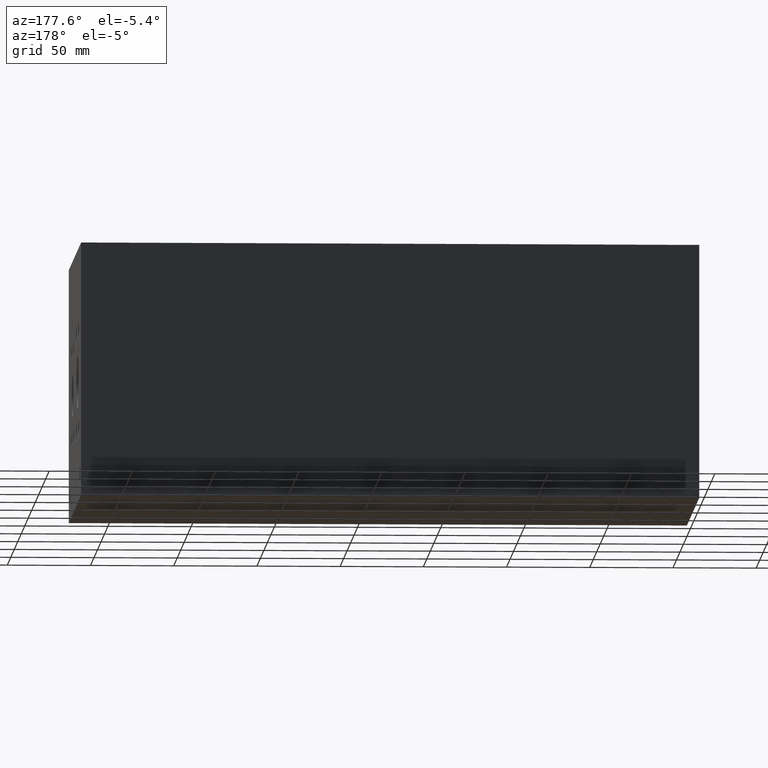
[diagram: clean part render]
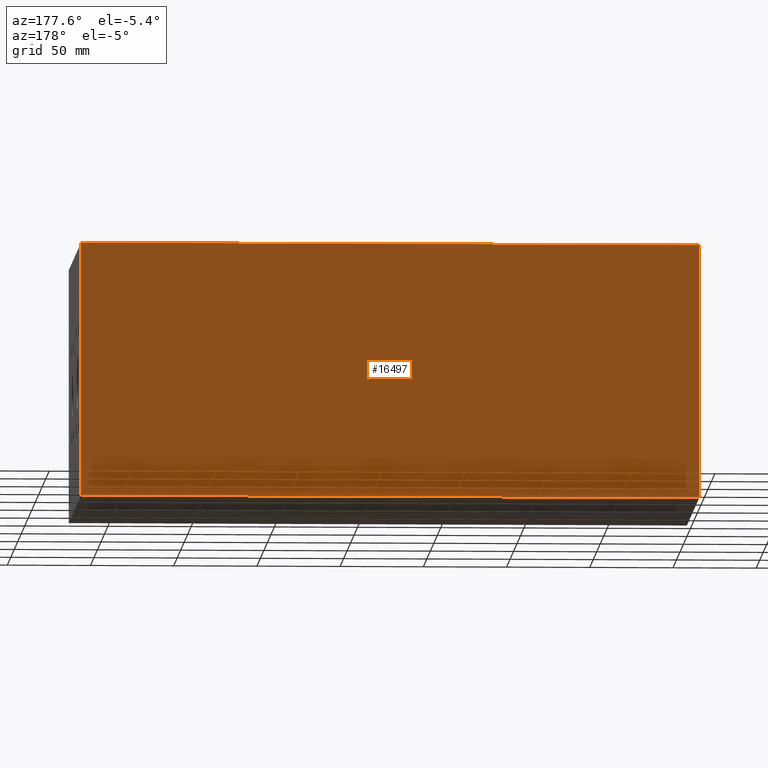
[diagram: same view with one face highlighted and labeled with its STEP entity id]
A machine part, auxiliary view. The second image highlights one B-rep face of the part: STEP entity #16497.
In plain terms, the highlighted planar face has unit normal (0, 1, 0).
Its self-contained STEP definition (entity closure, byte-faithful):
#1536=PLANE('',#17825);
#2393=FACE_OUTER_BOUND('',#3424,.T.);
#3424=EDGE_LOOP('',(#14902,#14903,#14904,#14905));
#3501=LINE('',#22068,#4902);
#3563=LINE('',#22378,#4964);
#4867=LINE('',#28428,#6268);
#4868=LINE('',#28429,#6269);
#4902=VECTOR('',#17885,10.);
#4964=VECTOR('',#18033,10.);
#6268=VECTOR('',#21851,10.);
#6269=VECTOR('',#21852,10.);
#6581=VERTEX_POINT('',#22065);
#6582=VERTEX_POINT('',#22067);
#6656=VERTEX_POINT('',#22371);
#6659=VERTEX_POINT('',#22376);
#8230=EDGE_CURVE('',#6581,#6582,#3501,.T.);
#8332=EDGE_CURVE('',#6656,#6659,#3563,.T.);
#10454=EDGE_CURVE('',#6581,#6656,#4867,.T.);
#10455=EDGE_CURVE('',#6582,#6659,#4868,.T.);
#14902=ORIENTED_EDGE('',*,*,#10454,.T.);
#14903=ORIENTED_EDGE('',*,*,#8332,.T.);
#14904=ORIENTED_EDGE('',*,*,#10455,.F.);
#14905=ORIENTED_EDGE('',*,*,#8230,.F.);
#16497=ADVANCED_FACE('',(#2393),#1536,.T.);
#17825=AXIS2_PLACEMENT_3D('',#28427,#21849,#21850);
#17885=DIRECTION('',(0.,0.,1.));
#18033=DIRECTION('',(0.,0.,1.));
#21849=DIRECTION('center_axis',(0.,1.,0.));
#21850=DIRECTION('ref_axis',(-1.,0.,0.));
#21851=DIRECTION('',(-1.,0.,0.));
#21852=DIRECTION('',(-1.,0.,0.));
#22065=CARTESIAN_POINT('',(371.475,177.8,0.));
#22067=CARTESIAN_POINT('',(371.475,177.8,152.4));
#22068=CARTESIAN_POINT('',(371.475,177.8,0.));
#22371=CARTESIAN_POINT('',(0.,177.8,0.));
#22376=CARTESIAN_POINT('',(0.,177.8,152.4));
#22378=CARTESIAN_POINT('',(0.,177.8,0.));
#28427=CARTESIAN_POINT('Origin',(371.475,177.8,0.));
#28428=CARTESIAN_POINT('',(371.475,177.8,0.));
#28429=CARTESIAN_POINT('',(371.475,177.8,152.4));